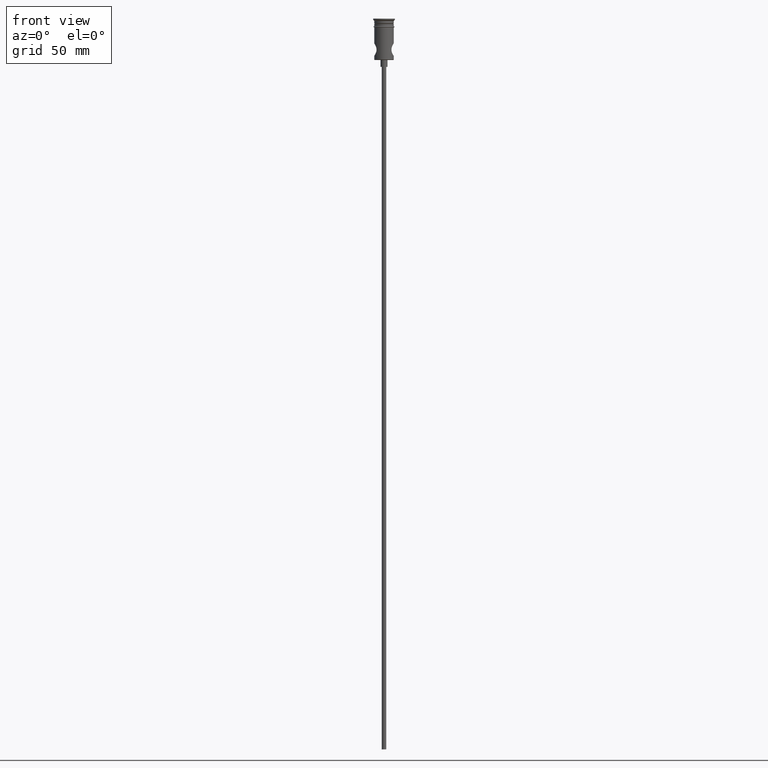
[diagram: clean part render]
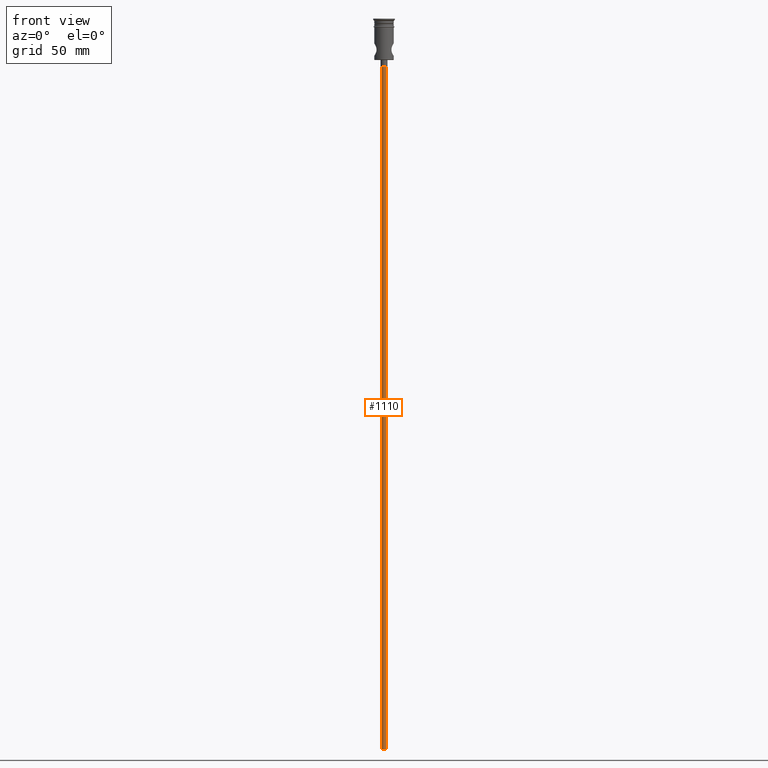
[diagram: same view with one face highlighted and labeled with its STEP entity id]
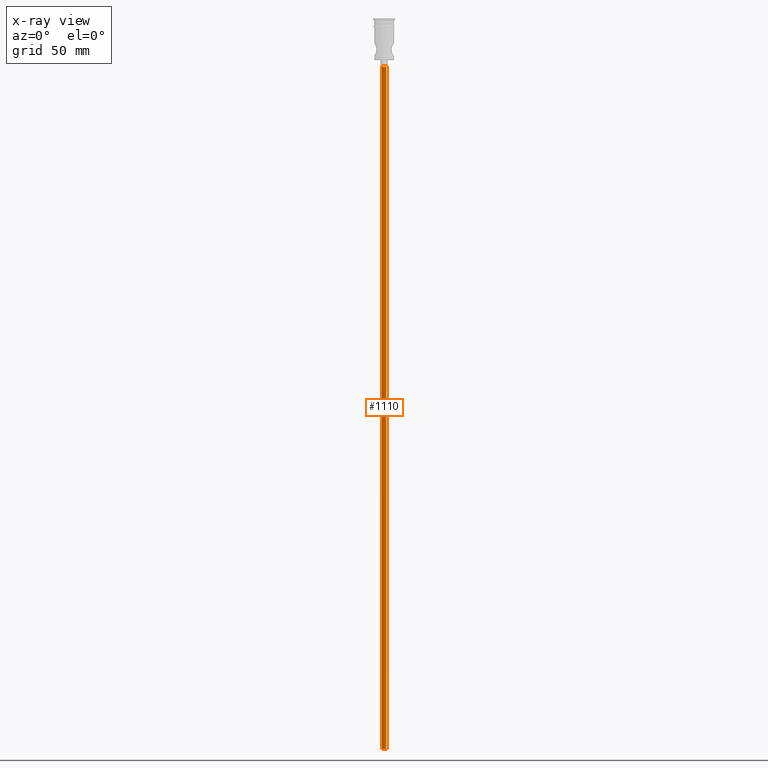
[diagram: x-ray of the same camera — body ghosted, the highlighted face saturated]
A machine part, front view. The second image highlights one B-rep face of the part: STEP entity #1110.
The next image is the same camera in x-ray: the body ghosted, the highlighted face saturated — about 0% of this face is hidden behind the body in this view.
In plain terms, the highlighted cylindrical surface (edge-blend (fillet) strip) has radius 1 mm, axis along (-0, -0, 1).
Its self-contained STEP definition (entity closure, byte-faithful):
#1 = ORIENTED_EDGE ( 'NONE', *, *, #1067, .F. ) ;
#2 = EDGE_CURVE ( 'NONE', #696, #321, #338, .T. ) ;
#14 = LINE ( 'NONE', #117, #221 ) ;
#67 = DIRECTION ( 'NONE',  ( -0.000000000000000000, -0.000000000000000000, 1.000000000000000000 ) ) ;
#68 = EDGE_CURVE ( 'NONE', #612, #321, #1144, .T. ) ;
#85 = CARTESIAN_POINT ( 'NONE',  ( 0.9999999999999997780, 0.000000000000000000, -20.99999999999999645 ) ) ;
#93 = ORIENTED_EDGE ( 'NONE', *, *, #472, .T. ) ;
#117 = CARTESIAN_POINT ( 'NONE',  ( 0.9999999999999997780, 0.000000000000000000, -318.0000000000000000 ) ) ;
#143 = DIRECTION ( 'NONE',  ( -1.000000000000000000, 0.000000000000000000, 0.000000000000000000 ) ) ;
#221 = VECTOR ( 'NONE', #1330, 1000.000000000000000 ) ;
#245 = DIRECTION ( 'NONE',  ( -1.000000000000000000, 0.000000000000000000, 0.000000000000000000 ) ) ;
#321 = VERTEX_POINT ( 'NONE', #430 ) ;
#338 = CIRCLE ( 'NONE', #1204, 0.9999999999999997780 ) ;
#394 = CARTESIAN_POINT ( 'NONE',  ( 0.000000000000000000, 0.000000000000000000, -318.0000000000000000 ) ) ;
#430 = CARTESIAN_POINT ( 'NONE',  ( -0.9999999999999997780, 1.224646799147352961E-16, -20.99999999999999645 ) ) ;
#472 = EDGE_CURVE ( 'NONE', #1125, #696, #14, .T. ) ;
#577 = AXIS2_PLACEMENT_3D ( 'NONE', #1036, #593, #143 ) ;
#593 = DIRECTION ( 'NONE',  ( 0.000000000000000000, 0.000000000000000000, -1.000000000000000000 ) ) ;
#601 = ORIENTED_EDGE ( 'NONE', *, *, #2, .T. ) ;
#612 = VERTEX_POINT ( 'NONE', #1033 ) ;
#696 = VERTEX_POINT ( 'NONE', #85 ) ;
#731 = CIRCLE ( 'NONE', #577, 0.9999999999999997780 ) ;
#827 = DIRECTION ( 'NONE',  ( -0.000000000000000000, -0.000000000000000000, 1.000000000000000000 ) ) ;
#936 = FACE_OUTER_BOUND ( 'NONE', #1132, .T. ) ;
#1033 = CARTESIAN_POINT ( 'NONE',  ( -0.9999999999999997780, 1.224646799147352961E-16, -318.0000000000000000 ) ) ;
#1034 = CARTESIAN_POINT ( 'NONE',  ( -0.9999999999999997780, 1.224646799147352961E-16, -318.0000000000000000 ) ) ;
#1036 = CARTESIAN_POINT ( 'NONE',  ( 0.000000000000000000, 0.000000000000000000, -318.0000000000000000 ) ) ;
#1067 = EDGE_CURVE ( 'NONE', #1125, #612, #731, .T. ) ;
#1108 = CARTESIAN_POINT ( 'NONE',  ( 0.000000000000000000, 0.000000000000000000, -20.99999999999999645 ) ) ;
#1110 = ADVANCED_FACE ( 'NONE', ( #936 ), #1368, .T. ) ;
#1125 = VERTEX_POINT ( 'NONE', #1262 ) ;
#1132 = EDGE_LOOP ( 'NONE', ( #1231, #1, #93, #601 ) ) ;
#1144 = LINE ( 'NONE', #1034, #1275 ) ;
#1152 = DIRECTION ( 'NONE',  ( 1.000000000000000000, 0.000000000000000000, 0.000000000000000000 ) ) ;
#1204 = AXIS2_PLACEMENT_3D ( 'NONE', #1108, #1309, #245 ) ;
#1231 = ORIENTED_EDGE ( 'NONE', *, *, #68, .F. ) ;
#1262 = CARTESIAN_POINT ( 'NONE',  ( 0.9999999999999997780, 0.000000000000000000, -318.0000000000000000 ) ) ;
#1275 = VECTOR ( 'NONE', #67, 1000.000000000000000 ) ;
#1279 = AXIS2_PLACEMENT_3D ( 'NONE', #394, #827, #1152 ) ;
#1309 = DIRECTION ( 'NONE',  ( 0.000000000000000000, 0.000000000000000000, -1.000000000000000000 ) ) ;
#1330 = DIRECTION ( 'NONE',  ( -0.000000000000000000, -0.000000000000000000, 1.000000000000000000 ) ) ;
#1368 = CYLINDRICAL_SURFACE ( 'NONE', #1279, 0.9999999999999997780 ) ;